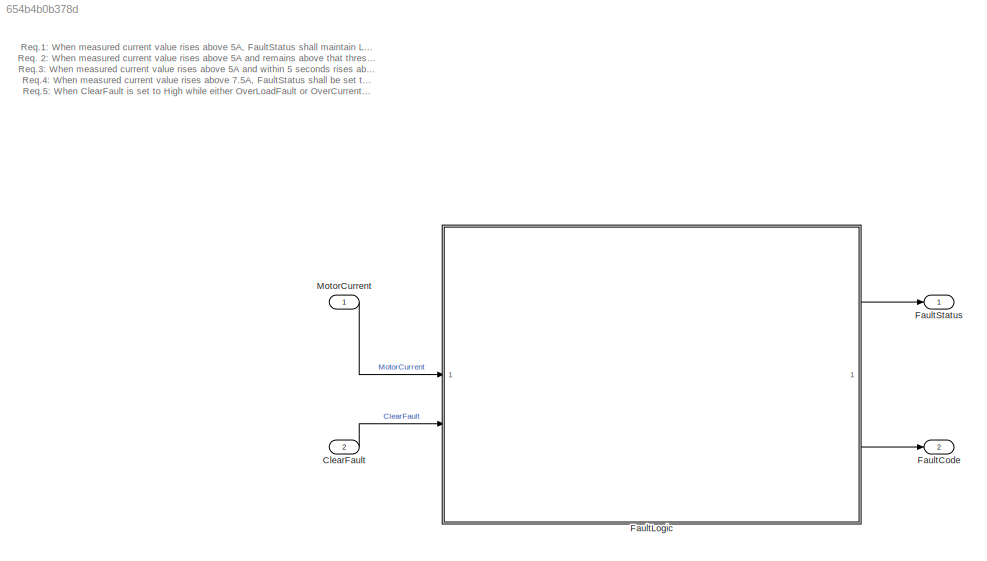
MODEL slx_654b4b0b378d
KIND model
CONFIG AbsTol = auto
CONFIG EnableMultiTasking = off
CONFIG FixedStep = 0.001
CONFIG InitFcn = % NXP_MBDT_S32K3 callback: DO NOT REMOVE\nmbd_s32k3.common.nxp.model_callbacks.initFcn();
CONFIG MaxStep = auto
CONFIG MinStep = auto
CONFIG PostLoadFcn = % NXP_MBDT_S32K3 callback: DO NOT REMOVE\nmbd_s32k3.common.nxp.model_callbacks.postLoadFcn();
CONFIG PreLoadFcn = % NXP_MBDT_S32K3 callback: DO NOT REMOVE\nmbd_s32k3.common.nxp.model_callbacks.preLoadFcn();
CONFIG RelTol = 1e-3
CONFIG SampleTimeConstraint = Unconstrained
CONFIG SolverName = FixedStepAuto
CONFIG StartTime = 0.0
CONFIG StopTime = 10.0
BLOCK [Inport] ClearFault
  Port = 2
BLOCK [Outport] FaultCode
  Port = 2
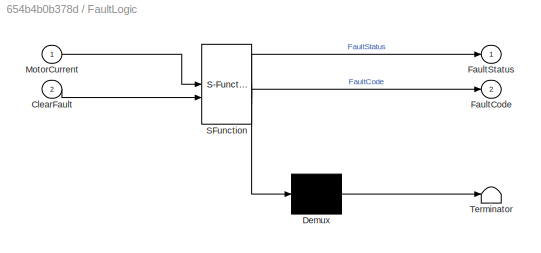
BLOCK [SubSystem] FaultLogic
  ErrorFcn = Stateflow.Translate.translate
  PermitHierarchicalResolution = ExplicitOnly
  SFBlockType = Chart
  TreatAsAtomicUnit = on
BLOCK [Demux] FaultLogic/ Demux 
  Outputs = 1
BLOCK [S-Function] FaultLogic/ SFunction 
  EnableBusSupport = on
  FunctionName = sf_sfun
  PortCounts = [2 3]
  SFcnIsStateOwnerBlock = off
  SFunctionDeploymentMode = off
  Tag = Stateflow S-Function 1
BLOCK [Terminator] FaultLogic/ Terminator 
BLOCK [Inport] FaultLogic/ClearFault
  Port = 2
BLOCK [Outport] FaultLogic/FaultCode
  Port = 2
BLOCK [Outport] FaultLogic/FaultStatus
BLOCK [Inport] FaultLogic/MotorCurrent
BLOCK [Outport] FaultStatus
BLOCK [Inport] MotorCurrent
ANNOTATION (root): Req.1: When measured current value rises above 5A, FaultStatus shall maintain Low and FaultCode shall be set to 1 (OverLoad). If the current value drops below 5A within 5s, FaultCode shall be set to 0. Req. 2: When measured current value rises above 5A and remains above that threshold for at least 5 seconds , FaultStatus shall be set to High and FaultCode shall be set to 2 ( OverLoadFault ). Req.3...<+473ch>
LINE ClearFault:1 -> FaultLogic:2
LINE FaultLogic:1 -> FaultStatus:1
LINE FaultLogic:2 -> FaultCode:1
LINE MotorCurrent:1 -> FaultLogic:1
CHART FaultLogic states=4 transitions=10
  STATE_LABEL 'NoFault\nentry:\nFaultCode = int16(0);\nFaultStatus = false;'
  STATE_LABEL 'OverLoad\nentry:\nFaultCode = int16(1);\nFaultStatus = false;\n'
  STATE_LABEL 'OverCurrentFault\nentry:\nFaultCode = int16(3);\nFaultStatus = true;'
  STATE_LABEL 'OverLoadFault\nentry:\nFaultCode = int16(2);\nFaultStatus = true;\n'
CHART  states=0 transitions=0
